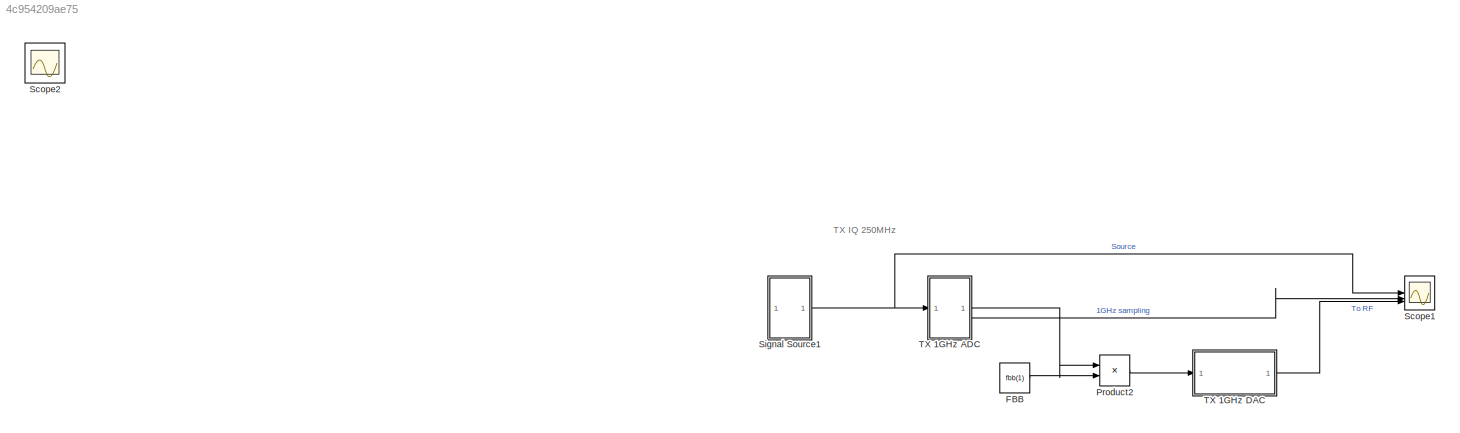
MODEL slx_4c954209ae75
KIND model
CONFIG AbsTol = auto
CONFIG EnableMultiTasking = off
CONFIG FixedStep = auto
CONFIG MaxStep = auto
CONFIG MinStep = auto
CONFIG PreLoadFcn = % Init values just to make sure that the model is loaded correctly when\n% not run within example script:\nif ~exist('arrayTXObj','var')\n    % General properties:\n    TX_Pin = -7.41; % Transmitter input power (dBm)\n    CF = 35e9; % Center frequency (Hz)\n    lambda = physconst('lightspeed')/CF; % Wavelength (1/m)\n    d = 100*lambda; % Distance between TX and RX antennas (m)\n    DOD = 180; % Direction...<+966ch>
CONFIG RelTol = 1e-3
CONFIG SampleTimeConstraint = Unconstrained
CONFIG SolverName = FixedStepDiscrete
CONFIG StartTime = 0.0
CONFIG StopTime = 15e-8
BLOCK [Constant] FBB
  Value = fbb(1)
BLOCK [Product] Product2
BLOCK [Scope] Scope1
  Floating = off
  NumInputPorts = 3
  ScopeSpecificationString = Simulink.scopes.TimeScopeBlockCfg('CurrentConfiguration', extmgr.ConfigurationSet(extmgr.Configuration('Core','General UI',true),extmgr.Configuration('Core','Source UI',true),extmgr.Configuration('Sources','WiredSimulink',true,'DataLoggingVariableName','ScopeData2','SampleTime','1/13e9'),extmgr.Configuration('Visuals','Time Domain',true,'PlotType','Line','SerializedDisplays',{struct('MinYLimReal',...<+3019ch>
BLOCK [Scope] Scope2
  Floating = off
  IOType = viewer
  NumInputPorts = 1
  ScopeSpecificationString = Simulink.scopes.TimeScopeBlockCfg('CurrentConfiguration', extmgr.ConfigurationSet(extmgr.Configuration('Core','General UI',true),extmgr.Configuration('Core','Source UI',true),extmgr.Configuration('Sources','WiredSimulink',true,'DataLoggingVariableName','ScopeData2'),extmgr.Configuration('Visuals','Time Domain',true,'SerializedDisplays',{struct('MinYLimReal','-1.00000','MaxYLimReal','1.00000','YLab...<+1388ch>
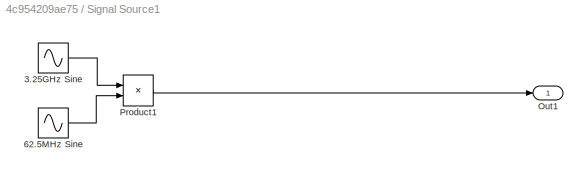
BLOCK [SubSystem] Signal Source1
BLOCK [Sin] Signal Source1/3.25GHz Sine
  Frequency = 2*pi*3.25e9
  SampleTime = 0
BLOCK [Sin] Signal Source1/62.5MHz Sine
  Frequency = 2*pi*62.5e6
  SampleTime = 0
BLOCK [Outport] Signal Source1/Out1
BLOCK [Product] Signal Source1/Product1
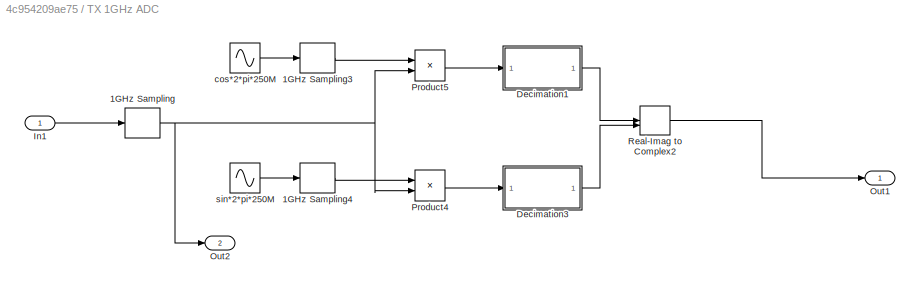
BLOCK [SubSystem] TX 1GHz ADC
BLOCK [ZeroOrderHold] TX 1GHz ADC/1GHz Sampling
  SampleTime = 1/1e9
BLOCK [ZeroOrderHold] TX 1GHz ADC/1GHz Sampling3
  SampleTime = 1/1e9
BLOCK [ZeroOrderHold] TX 1GHz ADC/1GHz Sampling4
  SampleTime = 1/1e9
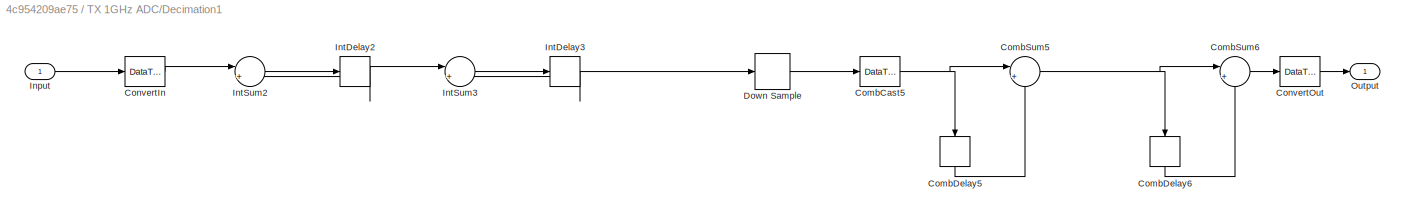
BLOCK [SubSystem] TX 1GHz ADC/Decimation1
  ErrorFcn = dspFilterRealizedInBasicElemsAlgLoopErrFcnCallback
  Tag = FilterWizardSubSystem
  UserDataPersistent = on
BLOCK [DataTypeConversion] TX 1GHz ADC/Decimation1/CombCast5
  OutDataTypeStr = fixdt(1,18,15)
  RndMeth = Floor
  SaturateOnIntegerOverflow = off
BLOCK [Delay] TX 1GHz ADC/Decimation1/CombDelay5
  DelayLength = 1
  InitialCondition = 0
  InputPortMap = u0
  NameLocation = right
BLOCK [Delay] TX 1GHz ADC/Decimation1/CombDelay6
  DelayLength = 1
  InitialCondition = 0
  InputPortMap = u0
  NameLocation = right
BLOCK [Sum] TX 1GHz ADC/Decimation1/CombSum5
  AccumDataTypeStr = fixdt(1,18,15)
  Inputs = |+-
  OutDataTypeStr = fixdt(1,18,15)
BLOCK [Sum] TX 1GHz ADC/Decimation1/CombSum6
  AccumDataTypeStr = fixdt(1,18,15)
  Inputs = |+-
  OutDataTypeStr = fixdt(1,18,15)
BLOCK [DataTypeConversion] TX 1GHz ADC/Decimation1/ConvertIn
  OutDataTypeStr = fixdt(1,16,15)
  RndMeth = Nearest
BLOCK [DataTypeConversion] TX 1GHz ADC/Decimation1/ConvertOut
  OutDataTypeStr = fixdt(1,18,15)
  RndMeth = Floor
  SaturateOnIntegerOverflow = off
BLOCK [DownSample] TX 1GHz ADC/Decimation1/Down Sample
  AllowArbitraryFixedInput = on
  InputProcessing = Elements as channels (sample based)
  RateOptions = Allow multirate processing
BLOCK [Inport] TX 1GHz ADC/Decimation1/Input
BLOCK [Delay] TX 1GHz ADC/Decimation1/IntDelay2
  DelayLength = 1
  InitialCondition = 0
  InputPortMap = u0
BLOCK [Delay] TX 1GHz ADC/Decimation1/IntDelay3
  DelayLength = 1
  InitialCondition = 0
  InputPortMap = u0
BLOCK [Sum] TX 1GHz ADC/Decimation1/IntSum2
  AccumDataTypeStr = fixdt(1,18,15)
  Inputs = |++
  OutDataTypeStr = fixdt(1,18,15)
BLOCK [Sum] TX 1GHz ADC/Decimation1/IntSum3
  AccumDataTypeStr = fixdt(1,18,15)
  Inputs = |++
  OutDataTypeStr = fixdt(1,18,15)
BLOCK [Outport] TX 1GHz ADC/Decimation1/Output
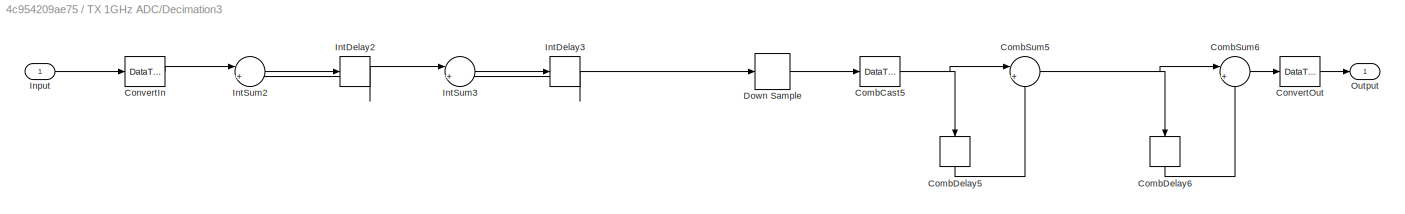
BLOCK [SubSystem] TX 1GHz ADC/Decimation3
  ErrorFcn = dspFilterRealizedInBasicElemsAlgLoopErrFcnCallback
  Tag = FilterWizardSubSystem
  UserDataPersistent = on
BLOCK [DataTypeConversion] TX 1GHz ADC/Decimation3/CombCast5
  OutDataTypeStr = fixdt(1,18,15)
  RndMeth = Floor
  SaturateOnIntegerOverflow = off
BLOCK [Delay] TX 1GHz ADC/Decimation3/CombDelay5
  DelayLength = 1
  InitialCondition = 0
  InputPortMap = u0
  NameLocation = right
BLOCK [Delay] TX 1GHz ADC/Decimation3/CombDelay6
  DelayLength = 1
  InitialCondition = 0
  InputPortMap = u0
  NameLocation = right
BLOCK [Sum] TX 1GHz ADC/Decimation3/CombSum5
  AccumDataTypeStr = fixdt(1,18,15)
  Inputs = |+-
  OutDataTypeStr = fixdt(1,18,15)
BLOCK [Sum] TX 1GHz ADC/Decimation3/CombSum6
  AccumDataTypeStr = fixdt(1,18,15)
  Inputs = |+-
  OutDataTypeStr = fixdt(1,18,15)
BLOCK [DataTypeConversion] TX 1GHz ADC/Decimation3/ConvertIn
  OutDataTypeStr = fixdt(1,16,15)
  RndMeth = Nearest
BLOCK [DataTypeConversion] TX 1GHz ADC/Decimation3/ConvertOut
  OutDataTypeStr = fixdt(1,18,15)
  RndMeth = Floor
  SaturateOnIntegerOverflow = off
BLOCK [DownSample] TX 1GHz ADC/Decimation3/Down Sample
  AllowArbitraryFixedInput = on
  InputProcessing = Elements as channels (sample based)
  RateOptions = Allow multirate processing
BLOCK [Inport] TX 1GHz ADC/Decimation3/Input
BLOCK [Delay] TX 1GHz ADC/Decimation3/IntDelay2
  DelayLength = 1
  InitialCondition = 0
  InputPortMap = u0
BLOCK [Delay] TX 1GHz ADC/Decimation3/IntDelay3
  DelayLength = 1
  InitialCondition = 0
  InputPortMap = u0
BLOCK [Sum] TX 1GHz ADC/Decimation3/IntSum2
  AccumDataTypeStr = fixdt(1,18,15)
  Inputs = |++
  OutDataTypeStr = fixdt(1,18,15)
BLOCK [Sum] TX 1GHz ADC/Decimation3/IntSum3
  AccumDataTypeStr = fixdt(1,18,15)
  Inputs = |++
  OutDataTypeStr = fixdt(1,18,15)
BLOCK [Outport] TX 1GHz ADC/Decimation3/Output
BLOCK [Inport] TX 1GHz ADC/In1
BLOCK [Outport] TX 1GHz ADC/Out1
BLOCK [Outport] TX 1GHz ADC/Out2
  Port = 2
BLOCK [Product] TX 1GHz ADC/Product4
BLOCK [Product] TX 1GHz ADC/Product5
BLOCK [RealImagToComplex] TX 1GHz ADC/Real-Imag to Complex2
BLOCK [Sin] TX 1GHz ADC/cos*2*pi*250M
  Frequency = 2*pi*250e6
  Phase = 1.5707
  SampleTime = 0
BLOCK [Sin] TX 1GHz ADC/sin*2*pi*250M
  Frequency = 2*pi*250e6
  SampleTime = 0
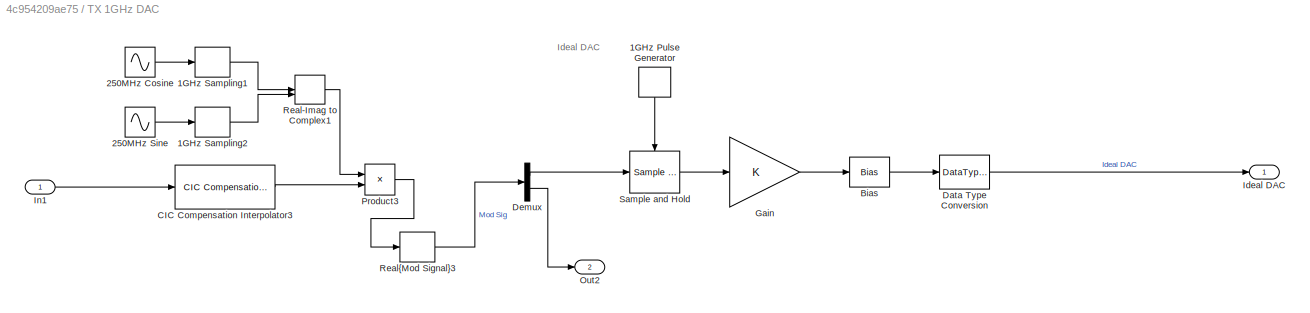
BLOCK [SubSystem] TX 1GHz DAC
BLOCK [DiscretePulseGenerator] TX 1GHz DAC/1GHz Pulse Generator
  NameLocation = left
  Period = 1 / 1e9
  PulseType = Time based
  PulseWidth = 50
BLOCK [ZeroOrderHold] TX 1GHz DAC/1GHz Sampling1
  SampleTime = 1/1e9
BLOCK [ZeroOrderHold] TX 1GHz DAC/1GHz Sampling2
  SampleTime = 1/1e9
BLOCK [Sin] TX 1GHz DAC/250MHz Cosine
  Frequency = 2*pi*250e6
  Phase = 1.5707
  SampleTime = 0
BLOCK [Sin] TX 1GHz DAC/250MHz Sine
  Frequency = 2*pi*250e6
  SampleTime = 0
BLOCK [Bias] TX 1GHz DAC/Bias
  Bias = Bias
  SaturateOnIntegerOverflow = off
BLOCK [Reference] TX 1GHz DAC/CIC Compensation Interpolator3  REF=dspfdesign/CIC Compensation
Interpolator
  SourceBlock = dspfdesign/CIC Compensation\nInterpolator
  SourceType = dsp.simulink.CICCompensationInterpolator
BLOCK [DataTypeConversion] TX 1GHz DAC/Data Type Conversion
  OutDataTypeStr = double
  RndMeth = Floor
  SaturateOnIntegerOverflow = off
BLOCK [Demux] TX 1GHz DAC/Demux
  Outputs = 2
BLOCK [Gain] TX 1GHz DAC/Gain
BLOCK [Outport] TX 1GHz DAC/Ideal DAC
BLOCK [Inport] TX 1GHz DAC/In1
BLOCK [Outport] TX 1GHz DAC/Out2
  Port = 2
BLOCK [Product] TX 1GHz DAC/Product3
BLOCK [RealImagToComplex] TX 1GHz DAC/Real-Imag to Complex1
BLOCK [ComplexToRealImag] TX 1GHz DAC/Real{Mod Signal}3
  Output = Real
BLOCK [Reference] TX 1GHz DAC/Sample and Hold  REF=dspsigops/Sample
and Hold
  SourceBlock = dspsigops/Sample\nand Hold
  SourceType = Sample and Hold
ANNOTATION (root): TX IQ 250MHz
ANNOTATION TX 1GHz DAC: Ideal DAC
LINE FBB:1 -> Product2:2
LINE Product2:1 -> TX 1GHz DAC:1
LINE Signal Source1/3.25GHz Sine:1 -> Signal Source1/Product1:1
LINE Signal Source1/62.5MHz Sine:1 -> Signal Source1/Product1:2
LINE Signal Source1/Product1:1 -> Signal Source1/Out1:1
NET Signal Source1:1 -> Scope1:1, TX 1GHz ADC:1
LINE TX 1GHz ADC/1GHz Sampling3:1 -> TX 1GHz ADC/Product5:1
LINE TX 1GHz ADC/1GHz Sampling4:1 -> TX 1GHz ADC/Product4:1
NET TX 1GHz ADC/1GHz Sampling:1 -> TX 1GHz ADC/Out2:1, TX 1GHz ADC/Product4:2, TX 1GHz ADC/Product5:2
NET TX 1GHz ADC/Decimation1/CombCast5:1 -> TX 1GHz ADC/Decimation1/CombDelay5:1, TX 1GHz ADC/Decimation1/CombSum5:1
LINE TX 1GHz ADC/Decimation1/CombDelay5:1 -> TX 1GHz ADC/Decimation1/CombSum5:2
LINE TX 1GHz ADC/Decimation1/CombDelay6:1 -> TX 1GHz ADC/Decimation1/CombSum6:2
NET TX 1GHz ADC/Decimation1/CombSum5:1 -> TX 1GHz ADC/Decimation1/CombDelay6:1, TX 1GHz ADC/Decimation1/CombSum6:1
LINE TX 1GHz ADC/Decimation1/CombSum6:1 -> TX 1GHz ADC/Decimation1/ConvertOut:1
LINE TX 1GHz ADC/Decimation1/ConvertIn:1 -> TX 1GHz ADC/Decimation1/IntSum2:1
LINE TX 1GHz ADC/Decimation1/ConvertOut:1 -> TX 1GHz ADC/Decimation1/Output:1
LINE TX 1GHz ADC/Decimation1/Down Sample:1 -> TX 1GHz ADC/Decimation1/CombCast5:1
LINE TX 1GHz ADC/Decimation1/Input:1 -> TX 1GHz ADC/Decimation1/ConvertIn:1
NET TX 1GHz ADC/Decimation1/IntDelay2:1 -> TX 1GHz ADC/Decimation1/IntSum2:2, TX 1GHz ADC/Decimation1/IntSum3:1
NET TX 1GHz ADC/Decimation1/IntDelay3:1 -> TX 1GHz ADC/Decimation1/Down Sample:1, TX 1GHz ADC/Decimation1/IntSum3:2
LINE TX 1GHz ADC/Decimation1/IntSum2:1 -> TX 1GHz ADC/Decimation1/IntDelay2:1
LINE TX 1GHz ADC/Decimation1/IntSum3:1 -> TX 1GHz ADC/Decimation1/IntDelay3:1
LINE TX 1GHz ADC/Decimation1:1 -> TX 1GHz ADC/Real-Imag to Complex2:1
NET TX 1GHz ADC/Decimation3/CombCast5:1 -> TX 1GHz ADC/Decimation3/CombDelay5:1, TX 1GHz ADC/Decimation3/CombSum5:1
LINE TX 1GHz ADC/Decimation3/CombDelay5:1 -> TX 1GHz ADC/Decimation3/CombSum5:2
LINE TX 1GHz ADC/Decimation3/CombDelay6:1 -> TX 1GHz ADC/Decimation3/CombSum6:2
NET TX 1GHz ADC/Decimation3/CombSum5:1 -> TX 1GHz ADC/Decimation3/CombDelay6:1, TX 1GHz ADC/Decimation3/CombSum6:1
LINE TX 1GHz ADC/Decimation3/CombSum6:1 -> TX 1GHz ADC/Decimation3/ConvertOut:1
LINE TX 1GHz ADC/Decimation3/ConvertIn:1 -> TX 1GHz ADC/Decimation3/IntSum2:1
LINE TX 1GHz ADC/Decimation3/ConvertOut:1 -> TX 1GHz ADC/Decimation3/Output:1
LINE TX 1GHz ADC/Decimation3/Down Sample:1 -> TX 1GHz ADC/Decimation3/CombCast5:1
LINE TX 1GHz ADC/Decimation3/Input:1 -> TX 1GHz ADC/Decimation3/ConvertIn:1
NET TX 1GHz ADC/Decimation3/IntDelay2:1 -> TX 1GHz ADC/Decimation3/IntSum2:2, TX 1GHz ADC/Decimation3/IntSum3:1
NET TX 1GHz ADC/Decimation3/IntDelay3:1 -> TX 1GHz ADC/Decimation3/Down Sample:1, TX 1GHz ADC/Decimation3/IntSum3:2
LINE TX 1GHz ADC/Decimation3/IntSum2:1 -> TX 1GHz ADC/Decimation3/IntDelay2:1
LINE TX 1GHz ADC/Decimation3/IntSum3:1 -> TX 1GHz ADC/Decimation3/IntDelay3:1
LINE TX 1GHz ADC/Decimation3:1 -> TX 1GHz ADC/Real-Imag to Complex2:2
LINE TX 1GHz ADC/In1:1 -> TX 1GHz ADC/1GHz Sampling:1
LINE TX 1GHz ADC/Product4:1 -> TX 1GHz ADC/Decimation3:1
LINE TX 1GHz ADC/Product5:1 -> TX 1GHz ADC/Decimation1:1
LINE TX 1GHz ADC/Real-Imag to Complex2:1 -> TX 1GHz ADC/Out1:1
LINE TX 1GHz ADC/cos*2*pi*250M:1 -> TX 1GHz ADC/1GHz Sampling3:1
LINE TX 1GHz ADC/sin*2*pi*250M:1 -> TX 1GHz ADC/1GHz Sampling4:1
LINE TX 1GHz ADC:1 -> Product2:1
LINE TX 1GHz ADC:2 -> Scope1:2
LINE TX 1GHz DAC/1GHz Pulse Generator:1 -> TX 1GHz DAC/Sample and Hold:trigger
LINE TX 1GHz DAC/1GHz Sampling1:1 -> TX 1GHz DAC/Real-Imag to Complex1:1
LINE TX 1GHz DAC/1GHz Sampling2:1 -> TX 1GHz DAC/Real-Imag to Complex1:2
LINE TX 1GHz DAC/250MHz Cosine:1 -> TX 1GHz DAC/1GHz Sampling1:1
LINE TX 1GHz DAC/250MHz Sine:1 -> TX 1GHz DAC/1GHz Sampling2:1
LINE TX 1GHz DAC/Bias:1 -> TX 1GHz DAC/Data Type Conversion:1
LINE TX 1GHz DAC/CIC Compensation Interpolator3:1 -> TX 1GHz DAC/Product3:2
LINE TX 1GHz DAC/Data Type Conversion:1 -> TX 1GHz DAC/Ideal DAC:1
LINE TX 1GHz DAC/Demux:1 -> TX 1GHz DAC/Sample and Hold:1
LINE TX 1GHz DAC/Demux:2 -> TX 1GHz DAC/Out2:1
LINE TX 1GHz DAC/Gain:1 -> TX 1GHz DAC/Bias:1
LINE TX 1GHz DAC/In1:1 -> TX 1GHz DAC/CIC Compensation Interpolator3:1
LINE TX 1GHz DAC/Product3:1 -> TX 1GHz DAC/Real{Mod Signal}3:1
LINE TX 1GHz DAC/Real-Imag to Complex1:1 -> TX 1GHz DAC/Product3:1
LINE TX 1GHz DAC/Real{Mod Signal}3:1 -> TX 1GHz DAC/Demux:1
LINE TX 1GHz DAC/Sample and Hold:1 -> TX 1GHz DAC/Gain:1
LINE TX 1GHz DAC:1 -> Scope1:3
note: NET lines group one-source signal fan-out (src -> all destinations, sorted); 1:1 wires keep LINE
